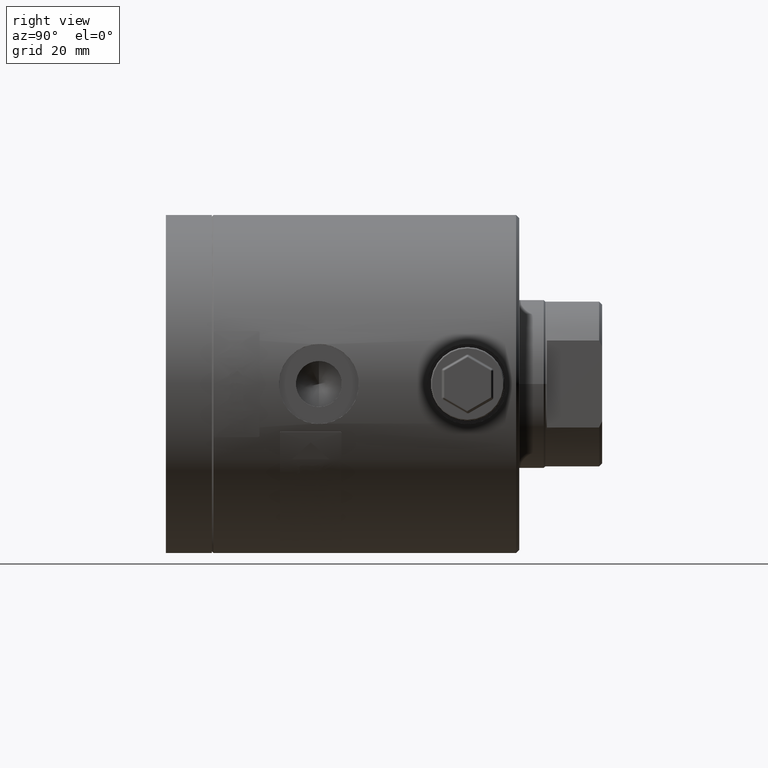
[diagram: clean part render]
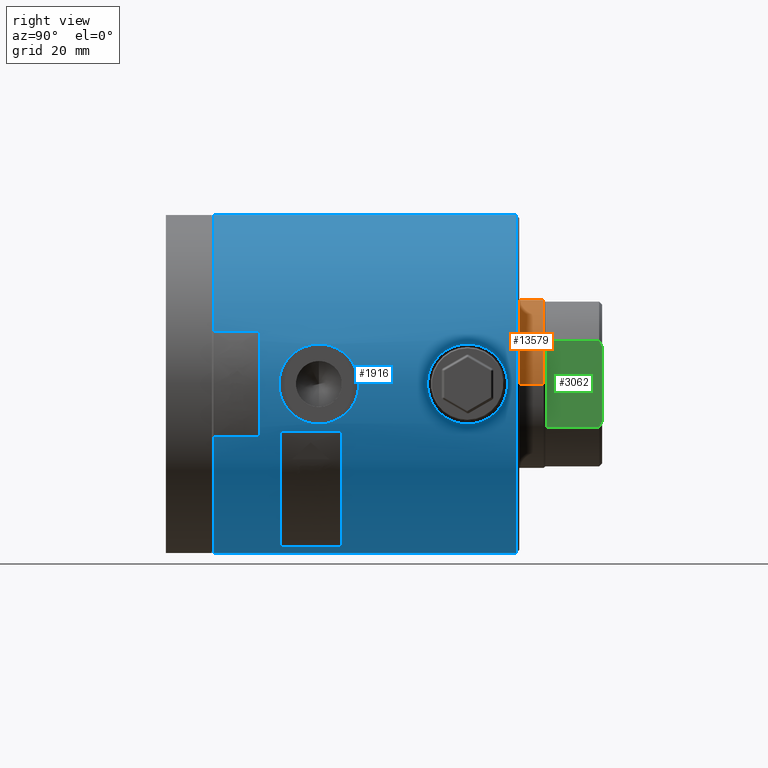
[diagram: same view with three faces highlighted in distinct colors, each labeled with its STEP entity id]
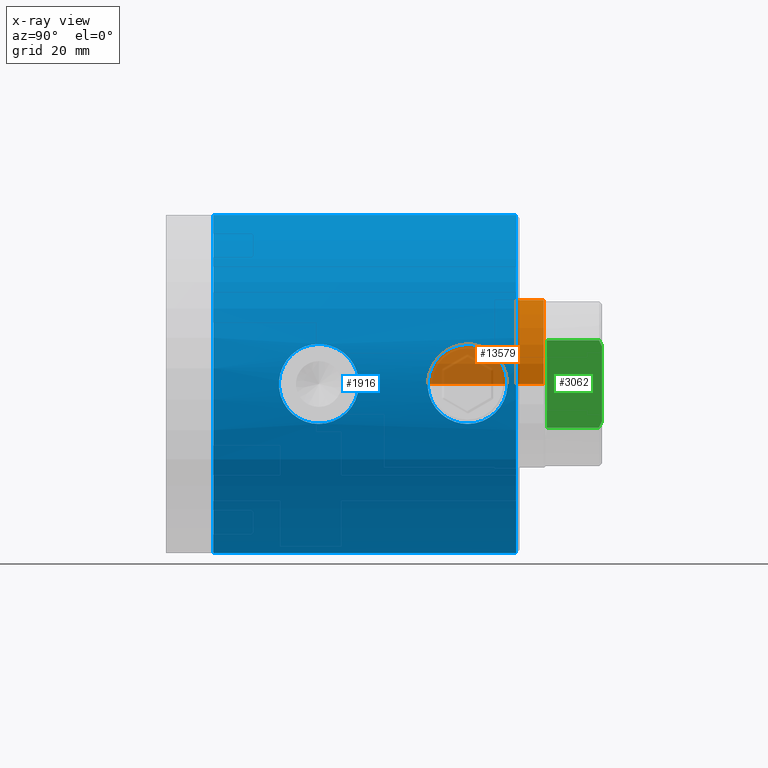
[diagram: x-ray of the same camera — body ghosted, the three highlighted faces saturated]
A machine part, right view with three faces highlighted in distinct colors.
The next image is the same camera in x-ray (body ghosted, the three faces saturated) — at least one of them is partly hidden behind the body in this view.
Their STEP definitions:

[orange] entity #13579 — the highlighted cylindrical surface (partial cylindrical patch) has radius 27.5 mm, axis along (0, 1, 0).
#1026 = DIRECTION ( 'NONE',  ( 1.000000000000000000, 0.0000000000000000000, 0.0000000000000000000 ) ) ;
#1830 = CARTESIAN_POINT ( 'NONE',  ( -27.50000000000000000, 71.00000000000000000, -3.367778697655221300E-015 ) ) ;
#2490 = VERTEX_POINT ( 'NONE', #27373 ) ;
#3138 = EDGE_CURVE ( 'NONE', #11494, #13696, #18725, .T. ) ;
#4324 = EDGE_CURVE ( 'NONE', #13696, #25688, #14158, .T. ) ;
#5200 = CIRCLE ( 'NONE', #11728, 27.50000000000000000 ) ;
#5994 = ORIENTED_EDGE ( 'NONE', *, *, #3138, .T. ) ;
#6874 = VECTOR ( 'NONE', #24692, 1000.000000000000000 ) ;
#7106 = EDGE_LOOP ( 'NONE', ( #36716, #5994, #15753, #23429 ) ) ;
#11494 = VERTEX_POINT ( 'NONE', #1830 ) ;
#11728 = AXIS2_PLACEMENT_3D ( 'NONE', #33780, #22108, #21971 ) ;
#11815 = EDGE_CURVE ( 'NONE', #25688, #2490, #5200, .T. ) ;
#12226 = FACE_OUTER_BOUND ( 'NONE', #7106, .T. ) ;
#13579 = ADVANCED_FACE ( 'NONE', ( #12226 ), #34974, .T. ) ;
#13696 = VERTEX_POINT ( 'NONE', #25600 ) ;
#14158 = LINE ( 'NONE', #21820, #6874 ) ;
#15582 = CARTESIAN_POINT ( 'NONE',  ( 0.0000000000000000000, 31.00000000000000000, 0.0000000000000000000 ) ) ;
#15753 = ORIENTED_EDGE ( 'NONE', *, *, #4324, .T. ) ;
#16947 = VECTOR ( 'NONE', #17363, 1000.000000000000000 ) ;
#17363 = DIRECTION ( 'NONE',  ( 0.0000000000000000000, 1.000000000000000000, 0.0000000000000000000 ) ) ;
#17855 = LINE ( 'NONE', #23238, #16947 ) ;
#18499 = DIRECTION ( 'NONE',  ( 0.0000000000000000000, 1.000000000000000000, 0.0000000000000000000 ) ) ;
#18725 = CIRCLE ( 'NONE', #26340, 27.50000000000000000 ) ;
#21820 = CARTESIAN_POINT ( 'NONE',  ( 27.50000000000000000, 31.00000000000000000, 0.0000000000000000000 ) ) ;
#21971 = DIRECTION ( 'NONE',  ( 1.000000000000000000, 0.0000000000000000000, 0.0000000000000000000 ) ) ;
#22108 = DIRECTION ( 'NONE',  ( -0.0000000000000000000, -1.000000000000000000, -0.0000000000000000000 ) ) ;
#23238 = CARTESIAN_POINT ( 'NONE',  ( -27.50000000000000000, 31.00000000000000000, -3.367778697655221300E-015 ) ) ;
#23429 = ORIENTED_EDGE ( 'NONE', *, *, #11815, .T. ) ;
#23728 = DIRECTION ( 'NONE',  ( -1.000000000000000000, 0.0000000000000000000, 0.0000000000000000000 ) ) ;
#24692 = DIRECTION ( 'NONE',  ( 0.0000000000000000000, 1.000000000000000000, 0.0000000000000000000 ) ) ;
#25600 = CARTESIAN_POINT ( 'NONE',  ( 27.50000000000000000, 71.00000000000000000, 0.0000000000000000000 ) ) ;
#25688 = VERTEX_POINT ( 'NONE', #29830 ) ;
#26340 = AXIS2_PLACEMENT_3D ( 'NONE', #26640, #32127, #23728 ) ;
#26640 = CARTESIAN_POINT ( 'NONE',  ( 0.0000000000000000000, 71.00000000000000000, 0.0000000000000000000 ) ) ;
#27373 = CARTESIAN_POINT ( 'NONE',  ( -27.50000000000000000, 123.0000000000000000, -3.367778697655221300E-015 ) ) ;
#28866 = AXIS2_PLACEMENT_3D ( 'NONE', #15582, #18499, #1026 ) ;
#29830 = CARTESIAN_POINT ( 'NONE',  ( 27.50000000000000000, 123.0000000000000000, 0.0000000000000000000 ) ) ;
#31151 = EDGE_CURVE ( 'NONE', #11494, #2490, #17855, .T. ) ;
#32127 = DIRECTION ( 'NONE',  ( -0.0000000000000000000, 1.000000000000000000, -0.0000000000000000000 ) ) ;
#33780 = CARTESIAN_POINT ( 'NONE',  ( 0.0000000000000000000, 123.0000000000000000, 0.0000000000000000000 ) ) ;
#34974 = CYLINDRICAL_SURFACE ( 'NONE', #28866, 27.50000000000000000 ) ;
#36716 = ORIENTED_EDGE ( 'NONE', *, *, #31151, .F. ) ;

[blue] entity #1916 — the highlighted cylindrical surface (partial cylindrical patch) has radius 55 mm, axis along (0, -1, 0).
#429 = ORIENTED_EDGE ( 'NONE', *, *, #18850, .F. ) ;
#458 = CARTESIAN_POINT ( 'NONE',  ( 53.60525139705637100, 102.4059288979282300, 12.30826958882281200 ) ) ;
#664 = CARTESIAN_POINT ( 'NONE',  ( 54.42773848080054900, 87.88260578774210800, -7.920301664501731200 ) ) ;
#714 = CARTESIAN_POINT ( 'NONE',  ( 54.47704688069211400, 108.7736662702125900, 7.574895515674853600 ) ) ;
#1437 = FACE_BOUND ( 'NONE', #26947, .T. ) ;
#1740 = CARTESIAN_POINT ( 'NONE',  ( 53.83511998221094800, 56.30843085874599300, -11.26153431127154600 ) ) ;
#1916 = ADVANCED_FACE ( 'NONE', ( #1437, #15605, #7872 ), #19680, .T. ) ;
#2029 = CARTESIAN_POINT ( 'NONE',  ( 53.63737189783381600, 45.20424695253900200, 12.16800625982183200 ) ) ;
#2157 = CARTESIAN_POINT ( 'NONE',  ( 54.56979125871321700, 38.75842547464716100, 6.875040786996830600 ) ) ;
#2272 = CARTESIAN_POINT ( 'NONE',  ( 54.92179098771038100, 37.13470257244860300, 2.962025748302617800 ) ) ;
#2372 = CARTESIAN_POINT ( 'NONE',  ( 54.84150724109349500, 62.11281778680781000, -4.192329343255689600 ) ) ;
#2502 = CARTESIAN_POINT ( 'NONE',  ( 54.99483551956596700, 62.77819817410819100, -0.8651753843103317000 ) ) ;
#2506 = CARTESIAN_POINT ( 'NONE',  ( 54.27636029710861000, 107.6873902159868000, -8.897694764609417100 ) ) ;
#2562 = B_SPLINE_CURVE_WITH_KNOTS ( 'NONE', 3,
 ( #5328, #4937, #36926, #8283, #28499, #13765, #34488, #37054, #11104, #16918, #37303, #2506, #19854, #22920, #5960, #19581, #7905, #10861, #31176, #34108, #5069, #16676, #25435, #6480, #26594, #3643, #14796, #23806, #9077, #26840, #35394, #714, #9201, #18179, #3277, #17928, #29782, #32206, #29272, #26963, #20753, #15280, #458, #35133, #11867, #17684, #17801, #24047 ),
 .UNSPECIFIED., .F., .F.,
 ( 4, 2, 2, 2, 2, 2, 2, 2, 2, 2, 2, 2, 2, 2, 2, 2, 2, 2, 2, 2, 2, 2, 2, 4 ),
 ( 0.04078840299930924100, 0.04333699237375832100, 0.04588558174820740700, 0.04715987643543197200, 0.04843417112265652900, 0.05098276049710565000, 0.05225705518433021400, 0.05353134987155477200, 0.05607993924600390700, 0.05735423393322848500, 0.05862852862045304900, 0.05990282330767761300, 0.06117711799490219100, 0.06372570736935132000, 0.06627429674380046200, 0.06882288611824960400, 0.07009718080547416900, 0.07137147549269873300, 0.07264577017992331100, 0.07392006486714787500, 0.07646865424159698900, 0.07774294892882155400, 0.07901724361604611800, 0.08156583299049531600 ),
 .UNSPECIFIED. ) ;
#2627 = CARTESIAN_POINT ( 'NONE',  ( 54.90316956836360900, 62.38507136038918300, 3.367422809596049700 ) ) ;
#2752 = CARTESIAN_POINT ( 'NONE',  ( 54.12599363346066600, 58.38648612138911900, 9.769942202212311200 ) ) ;
#3151 = CARTESIAN_POINT ( 'NONE',  ( 6.735557395310442600E-015, 15.50000000000000000, 55.00000000000000000 ) ) ;
#3277 = CARTESIAN_POINT ( 'NONE',  ( 54.27777871290607700, 107.6954528845000100, 8.889004777090214300 ) ) ;
#3470 = CARTESIAN_POINT ( 'NONE',  ( 53.44155686354954300, 98.19999999999998900, -13.00000000000000000 ) ) ;
#3483 = CARTESIAN_POINT ( 'NONE',  ( 54.84120327645430800, 85.88853314458256700, 4.196365301803092000 ) ) ;
#3600 = CARTESIAN_POINT ( 'NONE',  ( 54.12381004728271000, 89.61280589532019300, -9.797285369411870400 ) ) ;
#3643 = CARTESIAN_POINT ( 'NONE',  ( 55.00007252935660800, 111.2003068549888400, 0.8529716585648529100 ) ) ;
#3868 = CARTESIAN_POINT ( 'NONE',  ( 55.00004027727098300, 85.19982959614809200, -0.4204342424216600500 ) ) ;
#3993 = CARTESIAN_POINT ( 'NONE',  ( 54.90234884524138400, 85.61849709581579800, -3.380926199778699900 ) ) ;
#4086 = CIRCLE ( 'NONE', #17047, 55.00000000000000000 ) ;
#4251 = CARTESIAN_POINT ( 'NONE',  ( 53.44155686354953600, 97.77490748498044600, -12.99999999999999500 ) ) ;
#4498 = CARTESIAN_POINT ( 'NONE',  ( 53.60041917101857900, 94.00289036850179500, -12.33314378366880800 ) ) ;
#4730 = CARTESIAN_POINT ( 'NONE',  ( 54.73791841927157300, 37.95665604307431800, 5.377201742889390300 ) ) ;
#4848 = CARTESIAN_POINT ( 'NONE',  ( 54.12381004728271000, 41.21280589532020900, -9.797285369411866900 ) ) ;
#4882 = EDGE_LOOP ( 'NONE', ( #34397, #6121, #30913, #33712 ) ) ;
#4937 = CARTESIAN_POINT ( 'NONE',  ( 53.44155686354955000, 99.04995631092880600, -12.99999999999999800 ) ) ;
#4969 = CARTESIAN_POINT ( 'NONE',  ( 54.96038451647020700, 36.96838112905810200, -2.128562067447077300 ) ) ;
#5069 = CARTESIAN_POINT ( 'NONE',  ( 54.92151560372739300, 110.8640999769311600, -2.966555541443425700 ) ) ;
#5101 = CARTESIAN_POINT ( 'NONE',  ( 53.44155686354954300, 49.79999999999999700, -13.00000000000000000 ) ) ;
#5194 = CARTESIAN_POINT ( 'NONE',  ( 54.47704688069213600, 60.37366627021261700, 7.574895515674830500 ) ) ;
#5231 = CARTESIAN_POINT ( 'NONE',  ( 55.00004027727099000, 36.79982959614812900, -0.4204342424216757600 ) ) ;
#5324 = CARTESIAN_POINT ( 'NONE',  ( 54.47614601538931100, 60.36899056307505200, -7.581230197465531600 ) ) ;
#5328 = CARTESIAN_POINT ( 'NONE',  ( 53.44155686354954300, 98.19999999999998900, -13.00000000000000000 ) ) ;
#5336 = VECTOR ( 'NONE', #22642, 1000.000000000000000 ) ;
#5960 = CARTESIAN_POINT ( 'NONE',  ( 54.47614601538931100, 108.7689905630750400, -7.581230197465529000 ) ) ;
#6121 = ORIENTED_EDGE ( 'NONE', *, *, #16510, .T. ) ;
#6427 = CARTESIAN_POINT ( 'NONE',  ( 54.69827666542294500, 86.54066609169287000, -5.765490829360590700 ) ) ;
#6480 = CARTESIAN_POINT ( 'NONE',  ( 54.99483551956596000, 111.1781981741081800, -0.8651753843103364700 ) ) ;
#6568 = CARTESIAN_POINT ( 'NONE',  ( 54.02280282569251600, 90.26600771948754700, -10.33280875778818100 ) ) ;
#6689 = CARTESIAN_POINT ( 'NONE',  ( 53.44155686354959300, 97.33775821531698100, 12.99999999999999300 ) ) ;
#6818 = CARTESIAN_POINT ( 'NONE',  ( 53.44155686354960000, 98.19999999999998900, 13.00000000000000000 ) ) ;
#7006 = VERTEX_POINT ( 'NONE', #3151 ) ;
#7565 = CARTESIAN_POINT ( 'NONE',  ( 53.44155686354960000, 48.93775821531705400, 12.99999999999999800 ) ) ;
#7685 = CARTESIAN_POINT ( 'NONE',  ( 54.42773848080054900, 39.48260578774208100, -7.920301664501739200 ) ) ;
#7776 = EDGE_CURVE ( 'NONE', #32637, #8166, #12437, .T. ) ;
#7809 = CARTESIAN_POINT ( 'NONE',  ( 53.54223245661575700, 46.41340394891663100, -12.58010104937148400 ) ) ;
#7872 = FACE_OUTER_BOUND ( 'NONE', #4882, .T. ) ;
#7905 = CARTESIAN_POINT ( 'NONE',  ( 54.70095883859809000, 109.8746601563145500, -5.782259908703957200 ) ) ;
#8024 = CARTESIAN_POINT ( 'NONE',  ( 53.97650262905537500, 57.38856549884837900, 10.56389277832429500 ) ) ;
#8166 = VERTEX_POINT ( 'NONE', #20841 ) ;
#8180 = CARTESIAN_POINT ( 'NONE',  ( 53.48242027623652500, 47.66836384489976600, -12.83113873000647600 ) ) ;
#8281 = CARTESIAN_POINT ( 'NONE',  ( 54.12398407321831700, 58.38806124765093800, -9.796090288724110800 ) ) ;
#8283 = CARTESIAN_POINT ( 'NONE',  ( 53.54199548737297900, 101.5846382953032500, -12.58112104425897600 ) ) ;
#8405 = CARTESIAN_POINT ( 'NONE',  ( 54.98010261587580100, 62.71656595794073000, 1.698788208942647100 ) ) ;
#8526 = EDGE_CURVE ( 'NONE', #31551, #18012, #10831, .T. ) ;
#8534 = CARTESIAN_POINT ( 'NONE',  ( 54.70095883859806200, 61.47466015631449200, -5.782259908703967900 ) ) ;
#8658 = EDGE_CURVE ( 'NONE', #31551, #35431, #31756, .T. ) ;
#8785 = DIRECTION ( 'NONE',  ( 0.0000000000000000000, -1.000000000000000000, 0.0000000000000000000 ) ) ;
#9077 = CARTESIAN_POINT ( 'NONE',  ( 54.84528144072408700, 110.5331135640476800, 4.197072746360945800 ) ) ;
#9201 = CARTESIAN_POINT ( 'NONE',  ( 54.42780951362609400, 108.5177744017402700, 7.919825286462215200 ) ) ;
#9403 = CARTESIAN_POINT ( 'NONE',  ( 54.47620886812727300, 87.63068598098816200, -7.580778372161693900 ) ) ;
#9523 = CARTESIAN_POINT ( 'NONE',  ( 54.96038451647020700, 85.36838112905815000, -2.128562067447073300 ) ) ;
#9644 = CARTESIAN_POINT ( 'NONE',  ( 54.61492090429551600, 86.93821066474535500, 6.507850640397024700 ) ) ;
#9905 = CARTESIAN_POINT ( 'NONE',  ( 54.42852958170186600, 87.87131023102429600, 7.940301187197976100 ) ) ;
#10414 = CARTESIAN_POINT ( 'NONE',  ( 53.48242027623655300, 96.06836384489979300, -12.83113873000648300 ) ) ;
#10530 = CARTESIAN_POINT ( 'NONE',  ( 53.46702098061042100, 96.49581871637386100, -12.89494266435427500 ) ) ;
#10647 = CARTESIAN_POINT ( 'NONE',  ( 54.02280282569252300, 41.86600771948754800, -10.33280875778818100 ) ) ;
#10831 = CIRCLE ( 'NONE', #30086, 55.00000000000000000 ) ;
#10861 = CARTESIAN_POINT ( 'NONE',  ( 54.80897551382846400, 110.3675591164089700, -4.597125188963653700 ) ) ;
#10891 = CARTESIAN_POINT ( 'NONE',  ( 54.17609655794646500, 40.90415643408533700, 9.489065398891101600 ) ) ;
#10976 = CARTESIAN_POINT ( 'NONE',  ( 53.63826694798957100, 54.40599764215458100, 12.16405128800365000 ) ) ;
#11104 = CARTESIAN_POINT ( 'NONE',  ( 53.88107633105070700, 105.0769697024139300, -11.04027322347986800 ) ) ;
#11139 = CARTESIAN_POINT ( 'NONE',  ( 54.61492090429553100, 38.53821066474536400, 6.507850640397018400 ) ) ;
#11233 = CARTESIAN_POINT ( 'NONE',  ( 54.27777871290607700, 59.29545288450005100, 8.889004777090207200 ) ) ;
#11483 = CARTESIAN_POINT ( 'NONE',  ( 54.84528144072407200, 62.13311356404767600, 4.197072746360945800 ) ) ;
#11867 = CARTESIAN_POINT ( 'NONE',  ( 53.52232127210889000, 101.1688421647899600, 12.66367041175494800 ) ) ;
#12358 = CARTESIAN_POINT ( 'NONE',  ( 0.0000000000000000000, 15.50000000000000000, -55.00000000000000000 ) ) ;
#12437 = B_SPLINE_CURVE_WITH_KNOTS ( 'NONE', 3,
 ( #30820, #30930, #36673, #22417, #16671, #13398, #19210, #1740, #25053, #31420, #8281, #25936, #34616, #34486, #5324, #25691, #8534, #28878, #2372, #19710, #23169, #17049, #28617, #2502, #31685, #37300, #8405, #2627, #11483, #20227, #31550, #5194, #13899, #22672, #11233, #25434, #2752, #17175, #8024, #14146, #28370, #10976, #31292, #37422, #28743, #19970, #14026, #16795 ),
 .UNSPECIFIED., .F., .F.,
 ( 4, 2, 2, 2, 2, 2, 2, 2, 2, 2, 2, 2, 2, 2, 2, 2, 2, 2, 2, 2, 2, 2, 2, 4 ),
 ( 0.04078840299930929600, 0.04333699237375844600, 0.04588558174820759500, 0.04715987643543216600, 0.04843417112265673700, 0.05098276049710588600, 0.05225705518433045700, 0.05353134987155503500, 0.05607993924600417100, 0.05735423393322874200, 0.05862852862045330600, 0.05990282330767787700, 0.06117711799490244100, 0.06372570736935157000, 0.06627429674380069800, 0.06882288611824984000, 0.07009718080547440400, 0.07137147549269896900, 0.07264577017992353300, 0.07392006486714809700, 0.07646865424159721100, 0.07774294892882176200, 0.07901724361604631200, 0.08156583299049542700 ),
 .UNSPECIFIED. ) ;
#12818 = CARTESIAN_POINT ( 'NONE',  ( 54.73802953744007000, 86.35612488389227800, -5.376339543569700100 ) ) ;
#12843 = ORIENTED_EDGE ( 'NONE', *, *, #7776, .F. ) ;
#13149 = DIRECTION ( 'NONE',  ( 0.0000000000000000000, 0.0000000000000000000, -1.000000000000000000 ) ) ;
#13398 = CARTESIAN_POINT ( 'NONE',  ( 53.70953849693842800, 55.17274164253926500, -11.84538518200592700 ) ) ;
#13556 = CARTESIAN_POINT ( 'NONE',  ( 53.88145199444093000, 42.92016561826246600, -11.03841797826689900 ) ) ;
#13765 = CARTESIAN_POINT ( 'NONE',  ( 53.70953849693844300, 103.5727416425392800, -11.84538518200593100 ) ) ;
#13803 = CARTESIAN_POINT ( 'NONE',  ( 53.83602544175624200, 43.28403553657678800, -11.25721870752868300 ) ) ;
#13813 = EDGE_CURVE ( 'NONE', #19940, #24619, #19403, .T. ) ;
#13899 = CARTESIAN_POINT ( 'NONE',  ( 54.42780951362612300, 60.11777440174032700, 7.919825286462193000 ) ) ;
#13936 = CARTESIAN_POINT ( 'NONE',  ( 54.84120327645430800, 37.48853314458256100, 4.196365301803075100 ) ) ;
#14026 = CARTESIAN_POINT ( 'NONE',  ( 53.44155686354960700, 50.66200982203152100, 13.00000000000000500 ) ) ;
#14060 = CARTESIAN_POINT ( 'NONE',  ( 54.56935351708867900, 38.76064270613323300, -6.878313027092172400 ) ) ;
#14146 = CARTESIAN_POINT ( 'NONE',  ( 53.83379935066214700, 56.32471559463844800, 11.27637859678621400 ) ) ;
#14282 = CARTESIAN_POINT ( 'NONE',  ( 0.0000000000000000000, 114.0000000000000000, -55.00000000000000000 ) ) ;
#14473 = EDGE_CURVE ( 'NONE', #24619, #19940, #2562, .T. ) ;
#14796 = CARTESIAN_POINT ( 'NONE',  ( 54.98010261587577900, 111.1165659579406900, 1.698788208942666500 ) ) ;
#15233 = CARTESIAN_POINT ( 'NONE',  ( 54.92179098771038800, 85.53470257244862300, 2.962025748302631500 ) ) ;
#15280 = CARTESIAN_POINT ( 'NONE',  ( 53.63826694798955700, 102.8059976421545800, 12.16405128800365200 ) ) ;
#15591 = CARTESIAN_POINT ( 'NONE',  ( 54.89751273616664000, 85.64008184977956300, 3.380851067110504100 ) ) ;
#15605 = FACE_BOUND ( 'NONE', #29863, .T. ) ;
#15957 = CARTESIAN_POINT ( 'NONE',  ( 53.44662942810414600, 97.34906020687998300, -12.97920188736313200 ) ) ;
#16447 = CARTESIAN_POINT ( 'NONE',  ( 54.42852958170188100, 39.47131023102428300, 7.940301187197969000 ) ) ;
#16510 = EDGE_CURVE ( 'NONE', #18012, #7006, #25224, .T. ) ;
#16580 = CARTESIAN_POINT ( 'NONE',  ( 53.74701930899351500, 44.02460283026496800, 11.67775993849239000 ) ) ;
#16671 = CARTESIAN_POINT ( 'NONE',  ( 53.60057812415807600, 53.99872409875108300, -12.33242585271899100 ) ) ;
#16676 = CARTESIAN_POINT ( 'NONE',  ( 54.96013069564332200, 111.0305307020963100, -2.134797861330182600 ) ) ;
#16795 = CARTESIAN_POINT ( 'NONE',  ( 53.44155686354960000, 49.79999999999999700, 13.00000000000000000 ) ) ;
#16825 = CARTESIAN_POINT ( 'NONE',  ( 54.61403013228672900, 38.54251874047449200, -6.515371622576379800 ) ) ;
#16918 = CARTESIAN_POINT ( 'NONE',  ( 54.02302577462142400, 106.1357807824462000, -10.33173576515480500 ) ) ;
#16950 = CARTESIAN_POINT ( 'NONE',  ( 53.70970553597877000, 44.42550772174443800, -11.84463481762258800 ) ) ;
#17047 = AXIS2_PLACEMENT_3D ( 'NONE', #32004, #35189, #17618 ) ;
#17049 = CARTESIAN_POINT ( 'NONE',  ( 54.96013069564334300, 62.63053070209631600, -2.134797861330175900 ) ) ;
#17175 = CARTESIAN_POINT ( 'NONE',  ( 54.02604643872719900, 57.73210255246939200, 10.30831041657583000 ) ) ;
#17618 = DIRECTION ( 'NONE',  ( 0.0000000000000000000, 0.0000000000000000000, -1.000000000000000000 ) ) ;
#17684 = CARTESIAN_POINT ( 'NONE',  ( 53.46241635935495400, 99.91188806859750600, 12.91509688808272400 ) ) ;
#17801 = CARTESIAN_POINT ( 'NONE',  ( 53.44155686354959300, 99.06200982203151300, 13.00000000000000400 ) ) ;
#17928 = CARTESIAN_POINT ( 'NONE',  ( 54.17662677195710300, 107.0990590436573600, 9.486030758246197800 ) ) ;
#17958 = CARTESIAN_POINT ( 'NONE',  ( 0.0000000000000000000, 114.0000000000000000, 0.0000000000000000000 ) ) ;
#18012 = VERTEX_POINT ( 'NONE', #22669 ) ;
#18015 = CARTESIAN_POINT ( 'NONE',  ( 54.12528612099156100, 89.61789330204706500, 9.773902081138313500 ) ) ;
#18139 = CARTESIAN_POINT ( 'NONE',  ( 54.56979125871320200, 87.15842547464714600, 6.875040786996838600 ) ) ;
#18179 = CARTESIAN_POINT ( 'NONE',  ( 54.32829997675172300, 107.9792739258884100, 8.575890779139626800 ) ) ;
#18494 = CARTESIAN_POINT ( 'NONE',  ( 53.44155686354960000, 98.19999999999998900, 13.00000000000000000 ) ) ;
#18509 = CARTESIAN_POINT ( 'NONE',  ( 54.99514037654429200, 85.22051028219620200, -0.8475379838297395500 ) ) ;
#18850 = EDGE_CURVE ( 'NONE', #8166, #32637, #26121, .T. ) ;
#19020 = CARTESIAN_POINT ( 'NONE',  ( 53.75001213178466500, 92.43771211321654800, -11.66099499303369700 ) ) ;
#19138 = CARTESIAN_POINT ( 'NONE',  ( 53.70970553597877000, 92.82550772174444400, -11.84463481762258800 ) ) ;
#19210 = CARTESIAN_POINT ( 'NONE',  ( 53.74939323653873700, 55.55645742102758100, -11.66383407147581900 ) ) ;
#19369 = CARTESIAN_POINT ( 'NONE',  ( 54.97524664258626400, 36.90506177944418900, -1.704711781110505500 ) ) ;
#19403 = B_SPLINE_CURVE_WITH_KNOTS ( 'NONE', 3,
 ( #6818, #6689, #30104, #30233, #35727, #24001, #33027, #32901, #27040, #27169, #23883, #18015, #20967, #32778, #9905, #18139, #9644, #24123, #29983, #35979, #3483, #15591, #15233, #35852, #21359, #3868, #18509, #21467, #9523, #3993, #24370, #12818, #6427, #26794, #35596, #9403, #664, #29732, #21093, #3600, #6568, #26915, #29856, #19020, #19138, #4498, #24737, #10414, #10530, #15957, #4251, #30745 ),
 .UNSPECIFIED., .F., .F.,
 ( 4, 2, 2, 2, 2, 2, 2, 2, 2, 2, 2, 2, 2, 2, 2, 2, 2, 2, 2, 2, 2, 2, 2, 2, 2, 4 ),
 ( 0.0000000000000000000, 0.002549275187456769900, 0.003823912781185175200, 0.005098550374913580500, 0.007647825562370388600, 0.008922463156098792100, 0.01019710074982719700, 0.01274637593728400600, 0.01402101353101242600, 0.01529565112474084100, 0.01657028871846925500, 0.01784492631219767500, 0.02039420149965450600, 0.02166883909338292500, 0.02294347668711134100, 0.02549275187456817200, 0.02676738946829658800, 0.02804202706202500700, 0.02931666465575342300, 0.03059130224948183900, 0.03314057743693867700, 0.03441521503066710000, 0.03568985262439551600, 0.03823912781185236100, 0.03951376540558079700, 0.04078840299930924100 ),
 .UNSPECIFIED. ) ;
#19491 = CARTESIAN_POINT ( 'NONE',  ( 54.80907724246735300, 37.63200791510886500, 4.595548203186150500 ) ) ;
#19581 = CARTESIAN_POINT ( 'NONE',  ( 54.61587311821098500, 109.4741254114869100, -6.527522311213926000 ) ) ;
#19615 = CARTESIAN_POINT ( 'NONE',  ( 54.12528612099157500, 41.21789330204708100, 9.773902081138304600 ) ) ;
#19680 = CYLINDRICAL_SURFACE ( 'NONE', #28513, 55.00000000000000000 ) ;
#19693 = CARTESIAN_POINT ( 'NONE',  ( 0.0000000000000000000, 115.0000000000000000, 0.0000000000000000000 ) ) ;
#19710 = CARTESIAN_POINT ( 'NONE',  ( 54.89767899018617900, 62.36064185803216000, -3.378073902048814900 ) ) ;
#19750 = CARTESIAN_POINT ( 'NONE',  ( 53.60399734007008700, 45.61011864420259300, 12.31372284760329800 ) ) ;
#19854 = CARTESIAN_POINT ( 'NONE',  ( 54.32756665579210400, 107.9752350979058200, -8.580590797970650400 ) ) ;
#19940 = VERTEX_POINT ( 'NONE', #18494 ) ;
#19954 = DIRECTION ( 'NONE',  ( 0.0000000000000000000, 0.0000000000000000000, -1.000000000000000000 ) ) ;
#19970 = CARTESIAN_POINT ( 'NONE',  ( 53.46241635935494000, 51.51188806859747200, 12.91509688808272900 ) ) ;
#20227 = CARTESIAN_POINT ( 'NONE',  ( 54.70261283159247500, 61.48232187857227900, 5.765801362115616300 ) ) ;
#20753 = CARTESIAN_POINT ( 'NONE',  ( 53.74746187988596800, 103.9789091455715100, 11.67568589651576400 ) ) ;
#20841 = CARTESIAN_POINT ( 'NONE',  ( 53.44155686354960000, 49.79999999999999700, 13.00000000000000000 ) ) ;
#20898 = CARTESIAN_POINT ( 'NONE',  ( 53.44155686354954300, 49.79999999999999700, -13.00000000000000000 ) ) ;
#20967 = CARTESIAN_POINT ( 'NONE',  ( 54.17609655794646500, 89.30415643408531400, 9.489065398891108700 ) ) ;
#21093 = CARTESIAN_POINT ( 'NONE',  ( 54.27708654735986500, 88.70840391668130600, -8.893327813108788500 ) ) ;
#21342 = EDGE_CURVE ( 'NONE', #7006, #35431, #4086, .T. ) ;
#21359 = CARTESIAN_POINT ( 'NONE',  ( 54.99991869765769800, 85.20034397147456700, 0.8565775303908617100 ) ) ;
#21467 = CARTESIAN_POINT ( 'NONE',  ( 54.97524664258626400, 85.30506177944418800, -1.704711781110488200 ) ) ;
#21836 = CARTESIAN_POINT ( 'NONE',  ( 53.44155686354960000, 49.79999999999999700, 13.00000000000000000 ) ) ;
#22214 = CARTESIAN_POINT ( 'NONE',  ( 54.47620886812728000, 39.23068598098814900, -7.580778372161703700 ) ) ;
#22417 = CARTESIAN_POINT ( 'NONE',  ( 53.54199548737296500, 53.18463829530323700, -12.58112104425897600 ) ) ;
#22455 = CARTESIAN_POINT ( 'NONE',  ( 54.99514037654430600, 36.82051028219623100, -0.8475379838297544300 ) ) ;
#22578 = CARTESIAN_POINT ( 'NONE',  ( 54.90234884524137700, 37.21849709581579900, -3.380926199778708800 ) ) ;
#22642 = DIRECTION ( 'NONE',  ( 0.0000000000000000000, -1.000000000000000000, 0.0000000000000000000 ) ) ;
#22669 = CARTESIAN_POINT ( 'NONE',  ( 6.735557395310442600E-015, 114.0000000000000000, 55.00000000000000000 ) ) ;
#22672 = CARTESIAN_POINT ( 'NONE',  ( 54.32829997675170100, 59.57927392588844400, 8.575890779139602000 ) ) ;
#22702 = CARTESIAN_POINT ( 'NONE',  ( 54.32798069035112600, 40.00837787369684400, 8.592887507137595200 ) ) ;
#22920 = CARTESIAN_POINT ( 'NONE',  ( 54.42754718962121500, 108.5164245530241700, -7.921688210432705500 ) ) ;
#23018 = CARTESIAN_POINT ( 'NONE',  ( 0.0000000000000000000, 115.0000000000000000, -55.00000000000000000 ) ) ;
#23169 = CARTESIAN_POINT ( 'NONE',  ( 54.92151560372737900, 62.46409997693116600, -2.966555541443423000 ) ) ;
#23806 = CARTESIAN_POINT ( 'NONE',  ( 54.90316956836360900, 110.7850713603892100, 3.367422809596066500 ) ) ;
#23883 = CARTESIAN_POINT ( 'NONE',  ( 54.02475161586549000, 90.27663298516291900, 10.31513317485139900 ) ) ;
#24001 = CARTESIAN_POINT ( 'NONE',  ( 53.60399734007009400, 94.01011864420259200, 12.31372284760329400 ) ) ;
#24047 = CARTESIAN_POINT ( 'NONE',  ( 53.44155686354960000, 98.19999999999998900, 13.00000000000000000 ) ) ;
#24123 = CARTESIAN_POINT ( 'NONE',  ( 54.69888377516304000, 86.53783039490542700, 5.759671786775602900 ) ) ;
#24370 = CARTESIAN_POINT ( 'NONE',  ( 54.84566799950051300, 85.86511861392234800, -4.192889195557387300 ) ) ;
#24619 = VERTEX_POINT ( 'NONE', #3470 ) ;
#24737 = CARTESIAN_POINT ( 'NONE',  ( 53.54223245661576400, 94.81340394891661600, -12.58010104937148600 ) ) ;
#25053 = CARTESIAN_POINT ( 'NONE',  ( 53.88107633105070700, 56.67696970241392100, -11.04027322347987200 ) ) ;
#25086 = CARTESIAN_POINT ( 'NONE',  ( 54.84566799950052700, 37.46511861392235700, -4.192889195557398800 ) ) ;
#25220 = CARTESIAN_POINT ( 'NONE',  ( 53.44662942810415300, 48.94906020687999200, -12.97920188736313000 ) ) ;
#25224 = LINE ( 'NONE', #31805, #29330 ) ;
#25344 = CARTESIAN_POINT ( 'NONE',  ( 54.69888377516302600, 38.13783039490540700, 5.759671786775595800 ) ) ;
#25434 = CARTESIAN_POINT ( 'NONE',  ( 54.17662677195713900, 58.69905904365735700, 9.486030758246190700 ) ) ;
#25435 = CARTESIAN_POINT ( 'NONE',  ( 54.97491019225607500, 111.0935039717268000, -1.714558725476270400 ) ) ;
#25468 = CARTESIAN_POINT ( 'NONE',  ( 53.46702098061040700, 48.09581871637384200, -12.89494266435427100 ) ) ;
#25596 = CARTESIAN_POINT ( 'NONE',  ( 53.46241742635309200, 48.09056099774054600, 12.91507155578844200 ) ) ;
#25691 = CARTESIAN_POINT ( 'NONE',  ( 54.61587311821099200, 61.07412541148690400, -6.527522311213926000 ) ) ;
#25936 = CARTESIAN_POINT ( 'NONE',  ( 54.27636029710862400, 59.28739021598679000, -8.897694764609422400 ) ) ;
#26121 = B_SPLINE_CURVE_WITH_KNOTS ( 'NONE', 3,
 ( #21836, #7565, #25596, #37089, #28531, #19750, #2029, #16580, #34016, #33901, #28274, #19615, #10891, #22702, #16447, #2157, #11139, #25344, #4730, #19491, #13936, #31450, #2272, #36954, #36826, #5231, #22455, #19369, #4969, #22578, #25086, #34264, #28038, #16825, #14060, #22214, #7685, #34393, #31206, #4848, #10647, #13556, #13803, #30965, #16950, #34139, #7809, #8180, #25468, #25220, #28157, #5101 ),
 .UNSPECIFIED., .F., .F.,
 ( 4, 2, 2, 2, 2, 2, 2, 2, 2, 2, 2, 2, 2, 2, 2, 2, 2, 2, 2, 2, 2, 2, 2, 2, 2, 4 ),
 ( 0.0000000000000000000, 0.002549275187456829700, 0.003823912781185244200, 0.005098550374913658600, 0.007647825562370506500, 0.008922463156098929200, 0.01019710074982735200, 0.01274637593728418200, 0.01402101353101259700, 0.01529565112474101300, 0.01657028871846942900, 0.01784492631219784100, 0.02039420149965467200, 0.02166883909338308500, 0.02294347668711150000, 0.02549275187456832500, 0.02676738946829674100, 0.02804202706202515600, 0.02931666465575356900, 0.03059130224948198400, 0.03314057743693880200, 0.03441521503066721800, 0.03568985262439562000, 0.03823912781185245800, 0.03951376540558088100, 0.04078840299930929600 ),
 .UNSPECIFIED. ) ;
#26594 = CARTESIAN_POINT ( 'NONE',  ( 54.99996343869451500, 111.1998453175443700, -0.4334817913892857200 ) ) ;
#26794 = CARTESIAN_POINT ( 'NONE',  ( 54.61403013228671500, 86.94251874047446900, -6.515371622576380700 ) ) ;
#26840 = CARTESIAN_POINT ( 'NONE',  ( 54.70261283159246800, 109.8823218785722600, 5.765801362115620800 ) ) ;
#26915 = CARTESIAN_POINT ( 'NONE',  ( 53.88145199444093700, 91.32016561826247900, -11.03841797826690700 ) ) ;
#26947 = EDGE_LOOP ( 'NONE', ( #33949, #35260 ) ) ;
#26963 = CARTESIAN_POINT ( 'NONE',  ( 53.83379935066213300, 104.7247155946384100, 11.27637859678623000 ) ) ;
#27040 = CARTESIAN_POINT ( 'NONE',  ( 53.83338497907708800, 91.67910768627093900, 11.27821441363138500 ) ) ;
#27169 = CARTESIAN_POINT ( 'NONE',  ( 53.97517640785956400, 90.62096029664763800, 10.57062895038802500 ) ) ;
#28038 = CARTESIAN_POINT ( 'NONE',  ( 54.69827666542294500, 38.14066609169284300, -5.765490829360589800 ) ) ;
#28157 = CARTESIAN_POINT ( 'NONE',  ( 53.44155686354955000, 49.37490748498048300, -13.00000000000000000 ) ) ;
#28274 = CARTESIAN_POINT ( 'NONE',  ( 54.02475161586550500, 41.87663298516290000, 10.31513317485138600 ) ) ;
#28370 = CARTESIAN_POINT ( 'NONE',  ( 53.74746187988597500, 55.57890914557150800, 11.67568589651575900 ) ) ;
#28499 = CARTESIAN_POINT ( 'NONE',  ( 53.60057812415806900, 102.3987240987511200, -12.33242585271899300 ) ) ;
#28513 = AXIS2_PLACEMENT_3D ( 'NONE', #19693, #37404, #19954 ) ;
#28531 = CARTESIAN_POINT ( 'NONE',  ( 53.54625014961634800, 46.42843062851927300, 12.56245979561882100 ) ) ;
#28617 = CARTESIAN_POINT ( 'NONE',  ( 54.97491019225610400, 62.69350397172682000, -1.714558725476272400 ) ) ;
#28743 = CARTESIAN_POINT ( 'NONE',  ( 53.52232127210888300, 52.76884216478995900, 12.66367041175495000 ) ) ;
#28878 = CARTESIAN_POINT ( 'NONE',  ( 54.80897551382845000, 61.96755911640892800, -4.597125188963663500 ) ) ;
#29272 = CARTESIAN_POINT ( 'NONE',  ( 53.97650262905536100, 105.7885654988483600, 10.56389277832430700 ) ) ;
#29330 = VECTOR ( 'NONE', #8785, 1000.000000000000000 ) ;
#29732 = CARTESIAN_POINT ( 'NONE',  ( 54.32831085165240400, 88.42067143457750000, -8.575811016886618200 ) ) ;
#29782 = CARTESIAN_POINT ( 'NONE',  ( 54.12599363346064500, 106.7864861213891000, 9.769942202212314800 ) ) ;
#29856 = CARTESIAN_POINT ( 'NONE',  ( 53.83602544175623400, 91.68403553657681500, -11.25721870752868800 ) ) ;
#29863 = EDGE_LOOP ( 'NONE', ( #429, #12843 ) ) ;
#29983 = CARTESIAN_POINT ( 'NONE',  ( 54.73791841927156600, 86.35665604307433800, 5.377201742889400100 ) ) ;
#30086 = AXIS2_PLACEMENT_3D ( 'NONE', #17958, #36301, #13149 ) ;
#30104 = CARTESIAN_POINT ( 'NONE',  ( 53.46241742635309900, 96.49056099774055900, 12.91507155578844600 ) ) ;
#30233 = CARTESIAN_POINT ( 'NONE',  ( 53.52178184441478900, 95.24125736852065000, 12.66594472548582900 ) ) ;
#30745 = CARTESIAN_POINT ( 'NONE',  ( 53.44155686354954300, 98.19999999999998900, -13.00000000000000000 ) ) ;
#30820 = CARTESIAN_POINT ( 'NONE',  ( 53.44155686354954300, 49.79999999999999700, -13.00000000000000000 ) ) ;
#30913 = ORIENTED_EDGE ( 'NONE', *, *, #21342, .T. ) ;
#30930 = CARTESIAN_POINT ( 'NONE',  ( 53.44155686354955000, 50.64995631092881500, -13.00000000000000000 ) ) ;
#30965 = CARTESIAN_POINT ( 'NONE',  ( 53.75001213178466500, 44.03771211321654300, -11.66099499303369000 ) ) ;
#31176 = CARTESIAN_POINT ( 'NONE',  ( 54.84150724109349500, 110.5128177868078200, -4.192329343255689600 ) ) ;
#31206 = CARTESIAN_POINT ( 'NONE',  ( 54.27708654735986500, 40.30840391668132100, -8.893327813108792100 ) ) ;
#31292 = CARTESIAN_POINT ( 'NONE',  ( 53.60525139705635700, 54.00592889792821400, 12.30826958882280800 ) ) ;
#31420 = CARTESIAN_POINT ( 'NONE',  ( 54.02302577462139500, 57.73578078244620600, -10.33173576515480700 ) ) ;
#31450 = CARTESIAN_POINT ( 'NONE',  ( 54.89751273616664000, 37.24008184977955700, 3.380851067110487700 ) ) ;
#31550 = CARTESIAN_POINT ( 'NONE',  ( 54.61777971552265900, 61.08348294030609800, 6.512208120500469400 ) ) ;
#31551 = VERTEX_POINT ( 'NONE', #14282 ) ;
#31685 = CARTESIAN_POINT ( 'NONE',  ( 54.99996343869453600, 62.79984531754440300, -0.4334817913893150300 ) ) ;
#31756 = LINE ( 'NONE', #23018, #5336 ) ;
#31805 = CARTESIAN_POINT ( 'NONE',  ( 6.735557395310442600E-015, 115.0000000000000000, 55.00000000000000000 ) ) ;
#32004 = CARTESIAN_POINT ( 'NONE',  ( 0.0000000000000000000, 15.50000000000000000, 0.0000000000000000000 ) ) ;
#32206 = CARTESIAN_POINT ( 'NONE',  ( 54.02604643872718500, 106.1321025524693600, 10.30831041657583200 ) ) ;
#32637 = VERTEX_POINT ( 'NONE', #20898 ) ;
#32778 = CARTESIAN_POINT ( 'NONE',  ( 54.32798069035111200, 88.40837787369682100, 8.592887507137600500 ) ) ;
#32901 = CARTESIAN_POINT ( 'NONE',  ( 53.74701930899350100, 92.42460283026497300, 11.67775993849239000 ) ) ;
#33027 = CARTESIAN_POINT ( 'NONE',  ( 53.63737189783380900, 93.60424695253901500, 12.16800625982183700 ) ) ;
#33712 = ORIENTED_EDGE ( 'NONE', *, *, #8658, .F. ) ;
#33901 = CARTESIAN_POINT ( 'NONE',  ( 53.97517640785956400, 42.22096029664756100, 10.57062895038800800 ) ) ;
#33949 = ORIENTED_EDGE ( 'NONE', *, *, #13813, .F. ) ;
#34016 = CARTESIAN_POINT ( 'NONE',  ( 53.83338497907708100, 43.27910768627091900, 11.27821441363137300 ) ) ;
#34108 = CARTESIAN_POINT ( 'NONE',  ( 54.89767899018619300, 110.7606418580321700, -3.378073902048815300 ) ) ;
#34139 = CARTESIAN_POINT ( 'NONE',  ( 53.60041917101857200, 45.60289036850181100, -12.33314378366880600 ) ) ;
#34264 = CARTESIAN_POINT ( 'NONE',  ( 54.73802953744008400, 37.95612488389230800, -5.376339543569717000 ) ) ;
#34393 = CARTESIAN_POINT ( 'NONE',  ( 54.32831085165240400, 40.02067143457751500, -8.575811016886627100 ) ) ;
#34397 = ORIENTED_EDGE ( 'NONE', *, *, #8526, .T. ) ;
#34486 = CARTESIAN_POINT ( 'NONE',  ( 54.42754718962121500, 60.11642455302417400, -7.921688210432719800 ) ) ;
#34488 = CARTESIAN_POINT ( 'NONE',  ( 53.74939323653873700, 103.9564574210275800, -11.66383407147581700 ) ) ;
#34616 = CARTESIAN_POINT ( 'NONE',  ( 54.32756665579210400, 59.57523509790583900, -8.580590797970661000 ) ) ;
#35133 = CARTESIAN_POINT ( 'NONE',  ( 53.54721488858029900, 101.5868987107102000, 12.55835400396715300 ) ) ;
#35189 = DIRECTION ( 'NONE',  ( -0.0000000000000000000, 1.000000000000000000, -0.0000000000000000000 ) ) ;
#35260 = ORIENTED_EDGE ( 'NONE', *, *, #14473, .F. ) ;
#35394 = CARTESIAN_POINT ( 'NONE',  ( 54.61777971552267300, 109.4834829403060900, 6.512208120500494200 ) ) ;
#35431 = VERTEX_POINT ( 'NONE', #12358 ) ;
#35596 = CARTESIAN_POINT ( 'NONE',  ( 54.56935351708867200, 87.16064270613321700, -6.878313027092160900 ) ) ;
#35727 = CARTESIAN_POINT ( 'NONE',  ( 53.54625014961635500, 94.82843062851931400, 12.56245979561882500 ) ) ;
#35852 = CARTESIAN_POINT ( 'NONE',  ( 54.98008110653482600, 85.28350461605303700, 1.702224675025888300 ) ) ;
#35979 = CARTESIAN_POINT ( 'NONE',  ( 54.80907724246738900, 86.03200791510889200, 4.595548203186161200 ) ) ;
#36301 = DIRECTION ( 'NONE',  ( 0.0000000000000000000, -1.000000000000000000, 0.0000000000000000000 ) ) ;
#36673 = CARTESIAN_POINT ( 'NONE',  ( 53.46184647478207100, 51.49691605960145300, -12.91746333484233500 ) ) ;
#36826 = CARTESIAN_POINT ( 'NONE',  ( 54.99991869765769100, 36.80034397147456800, 0.8565775303908480500 ) ) ;
#36926 = CARTESIAN_POINT ( 'NONE',  ( 53.46184647478206400, 99.89691605960142300, -12.91746333484233000 ) ) ;
#36954 = CARTESIAN_POINT ( 'NONE',  ( 54.98008110653484000, 36.88350461605304500, 1.702224675025876000 ) ) ;
#37054 = CARTESIAN_POINT ( 'NONE',  ( 53.83511998221096200, 104.7084308587460000, -11.26153431127154100 ) ) ;
#37089 = CARTESIAN_POINT ( 'NONE',  ( 53.52178184441478900, 46.84125736852066500, 12.66594472548582200 ) ) ;
#37300 = CARTESIAN_POINT ( 'NONE',  ( 55.00007252935660100, 62.80030685498884700, 0.8529716585648348100 ) ) ;
#37303 = CARTESIAN_POINT ( 'NONE',  ( 54.12398407321831700, 106.7880612476509400, -9.796090288724105500 ) ) ;
#37404 = DIRECTION ( 'NONE',  ( 0.0000000000000000000, -1.000000000000000000, 0.0000000000000000000 ) ) ;
#37422 = CARTESIAN_POINT ( 'NONE',  ( 53.54721488858027800, 53.18689871071018200, 12.55835400396714600 ) ) ;

[green] entity #3062 — the highlighted planar face has unit normal (1, 0, 0).
#765 = CARTESIAN_POINT ( 'NONE',  ( 23.00000000000000000, 142.0000000000000000, -12.12435565298219900 ) ) ;
#1139 = VERTEX_POINT ( 'NONE', #765 ) ;
#2815 = CARTESIAN_POINT ( 'NONE',  ( 23.00000000000000000, 124.0000000000000000, 26.00000000000000000 ) ) ;
#2845 = DIRECTION ( 'NONE',  ( -0.0000000000000000000, -1.000000000000000000, -0.0000000000000000000 ) ) ;
#3062 = ADVANCED_FACE ( 'NONE', ( #37413 ), #8589, .T. ) ;
#3208 = CARTESIAN_POINT ( 'NONE',  ( 23.00000000000000000, 142.0000000000000000, 12.12435565298219900 ) ) ;
#6136 = CARTESIAN_POINT ( 'NONE',  ( 23.00000000000000000, 141.0000000000000000, -14.14213562373093900 ) ) ;
#6406 = CARTESIAN_POINT ( 'NONE',  ( 23.00000000000000000, 123.0000000000000000, 14.14213562373093900 ) ) ;
#6652 = CARTESIAN_POINT ( 'NONE',  ( 23.00000000000000000, 142.0000000000000000, -12.12435565298219900 ) ) ;
#6842 = ORIENTED_EDGE ( 'NONE', *, *, #19115, .T. ) ;
#7217 = VECTOR ( 'NONE', #2845, 1000.000000000000000 ) ;
#7393 = CARTESIAN_POINT ( 'NONE',  ( 23.00000000000000000, 142.0000000000000000, 26.00000000000000000 ) ) ;
#8198 = VERTEX_POINT ( 'NONE', #11951 ) ;
#8250 = ORIENTED_EDGE ( 'NONE', *, *, #17079, .F. ) ;
#8589 = PLANE ( 'NONE',  #37584 ) ;
#9087 = EDGE_CURVE ( 'NONE', #1139, #10630, #24036, .T. ) ;
#9688 = LINE ( 'NONE', #7393, #10138 ) ;
#10138 = VECTOR ( 'NONE', #21813, 1000.000000000000000 ) ;
#10630 = VERTEX_POINT ( 'NONE', #6136 ) ;
#10694 = ORIENTED_EDGE ( 'NONE', *, *, #18907, .T. ) ;
#11514 = CARTESIAN_POINT ( 'NONE',  ( 23.00000000000000000, 124.0000000000000000, 26.00000000000000000 ) ) ;
#11816 = CARTESIAN_POINT ( 'NONE',  ( 23.00000000000000000, 141.0000000000000000, 14.14213562373093900 ) ) ;
#11951 = CARTESIAN_POINT ( 'NONE',  ( 23.00000000000000000, 142.0000000000000000, 12.12435565298219900 ) ) ;
#12538 = CARTESIAN_POINT ( 'NONE',  ( 23.00000000000000000, 141.3477984085379500, -13.47812296819059700 ) ) ;
#12708 = EDGE_CURVE ( 'NONE', #10630, #13442, #34533, .T. ) ;
#12942 = B_SPLINE_CURVE_WITH_KNOTS ( 'NONE', 3,
 ( #11816, #20696, #32645, #3208 ),
 .UNSPECIFIED., .F., .F.,
 ( 4, 4 ),
 ( 0.05032085039196345500, 0.05257631362350876500 ),
 .UNSPECIFIED. ) ;
#13442 = VERTEX_POINT ( 'NONE', #33265 ) ;
#14218 = VERTEX_POINT ( 'NONE', #18579 ) ;
#14970 = DIRECTION ( 'NONE',  ( 0.0000000000000000000, 1.000000000000000000, 0.0000000000000000000 ) ) ;
#16854 = DIRECTION ( 'NONE',  ( 0.0000000000000000000, 0.0000000000000000000, -1.000000000000000000 ) ) ;
#17079 = EDGE_CURVE ( 'NONE', #14218, #22477, #31087, .T. ) ;
#17850 = ORIENTED_EDGE ( 'NONE', *, *, #24702, .F. ) ;
#18579 = CARTESIAN_POINT ( 'NONE',  ( 23.00000000000000000, 124.0000000000000000, 14.14213562373093900 ) ) ;
#18907 = EDGE_CURVE ( 'NONE', #14218, #13442, #28783, .T. ) ;
#19115 = EDGE_CURVE ( 'NONE', #1139, #8198, #9688, .T. ) ;
#20696 = CARTESIAN_POINT ( 'NONE',  ( 23.00000000000000000, 141.3486152512427100, 13.47656346164826300 ) ) ;
#21813 = DIRECTION ( 'NONE',  ( 0.0000000000000000000, 0.0000000000000000000, 1.000000000000000000 ) ) ;
#22477 = VERTEX_POINT ( 'NONE', #34653 ) ;
#24036 = B_SPLINE_CURVE_WITH_KNOTS ( 'NONE', 3,
 ( #6652, #27001, #12538, #27129 ),
 .UNSPECIFIED., .F., .F.,
 ( 4, 4 ),
 ( 0.07776287054040839600, 0.08003266671410580500 ),
 .UNSPECIFIED. ) ;
#24702 = EDGE_CURVE ( 'NONE', #22477, #8198, #12942, .T. ) ;
#27001 = CARTESIAN_POINT ( 'NONE',  ( 23.00000000000000000, 141.6820891661415100, -12.80609758772048900 ) ) ;
#27129 = CARTESIAN_POINT ( 'NONE',  ( 23.00000000000000000, 141.0000000000000000, -14.14213562373093900 ) ) ;
#28783 = LINE ( 'NONE', #11514, #35154 ) ;
#28843 = ORIENTED_EDGE ( 'NONE', *, *, #12708, .F. ) ;
#29035 = DIRECTION ( 'NONE',  ( 0.0000000000000000000, 0.0000000000000000000, -1.000000000000000000 ) ) ;
#29092 = CARTESIAN_POINT ( 'NONE',  ( 23.00000000000000000, 123.0000000000000000, -14.14213562373093900 ) ) ;
#30164 = ORIENTED_EDGE ( 'NONE', *, *, #9087, .F. ) ;
#31087 = LINE ( 'NONE', #6406, #37450 ) ;
#32645 = CARTESIAN_POINT ( 'NONE',  ( 23.00000000000000000, 141.6828813898762300, 12.80439870839925100 ) ) ;
#33265 = CARTESIAN_POINT ( 'NONE',  ( 23.00000000000000000, 124.0000000000000000, -14.14213562373093900 ) ) ;
#34292 = DIRECTION ( 'NONE',  ( 1.000000000000000000, 0.0000000000000000000, 0.0000000000000000000 ) ) ;
#34533 = LINE ( 'NONE', #29092, #7217 ) ;
#34653 = CARTESIAN_POINT ( 'NONE',  ( 23.00000000000000000, 141.0000000000000000, 14.14213562373093900 ) ) ;
#35154 = VECTOR ( 'NONE', #29035, 1000.000000000000000 ) ;
#35964 = EDGE_LOOP ( 'NONE', ( #10694, #28843, #30164, #6842, #17850, #8250 ) ) ;
#37413 = FACE_OUTER_BOUND ( 'NONE', #35964, .T. ) ;
#37450 = VECTOR ( 'NONE', #14970, 1000.000000000000000 ) ;
#37584 = AXIS2_PLACEMENT_3D ( 'NONE', #2815, #34292, #16854 ) ;